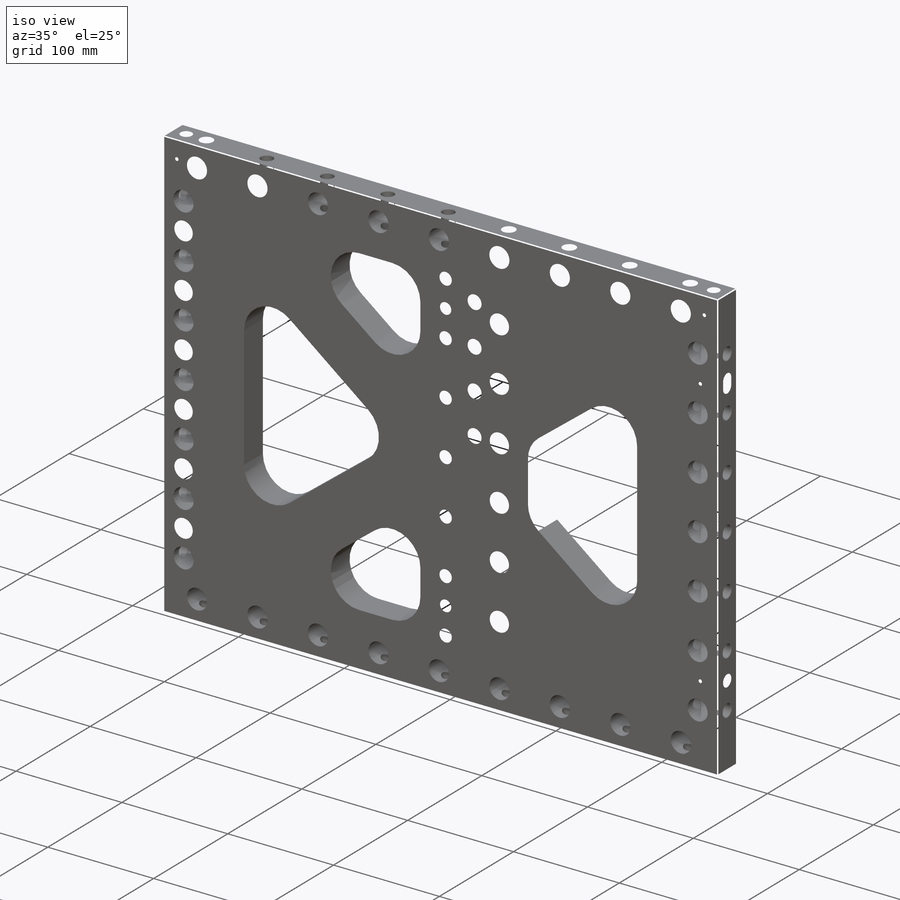
[diagram: iso view]
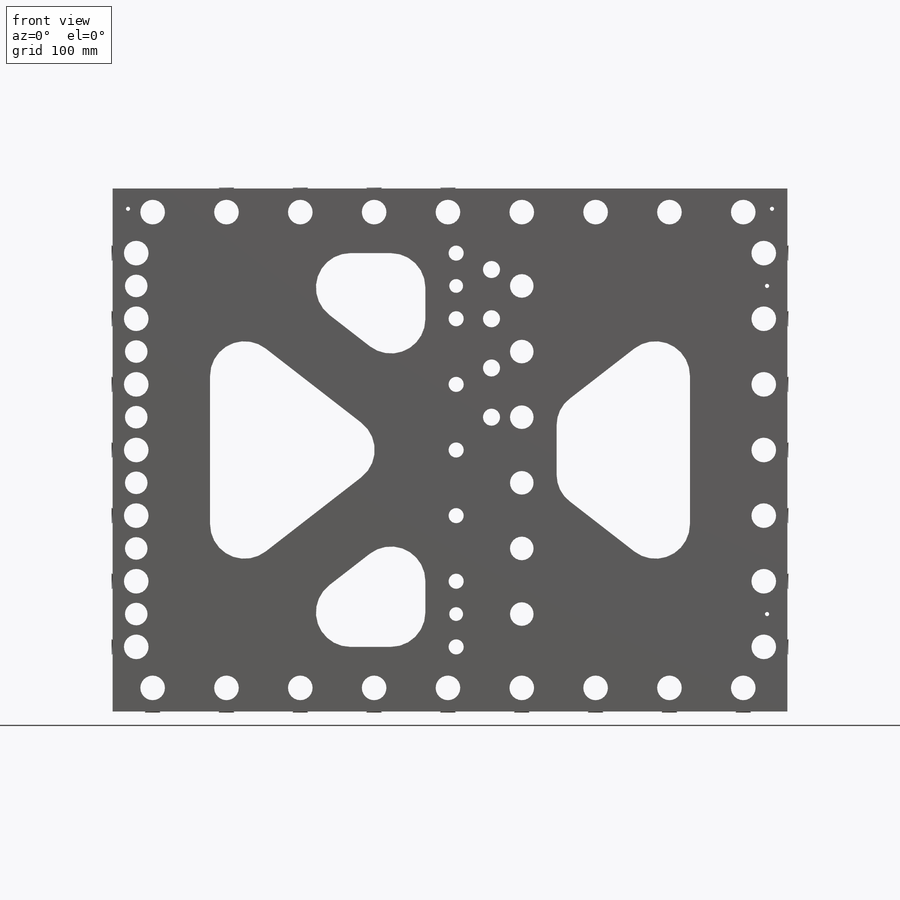
[diagram: front view]
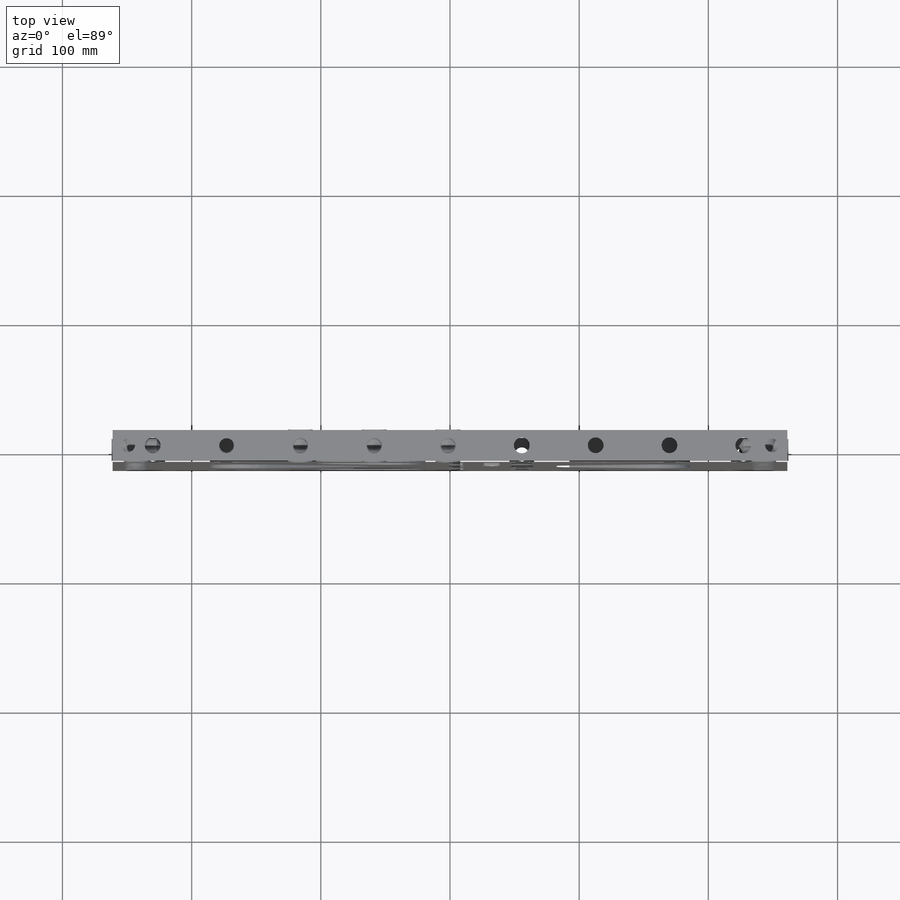
[diagram: top view]
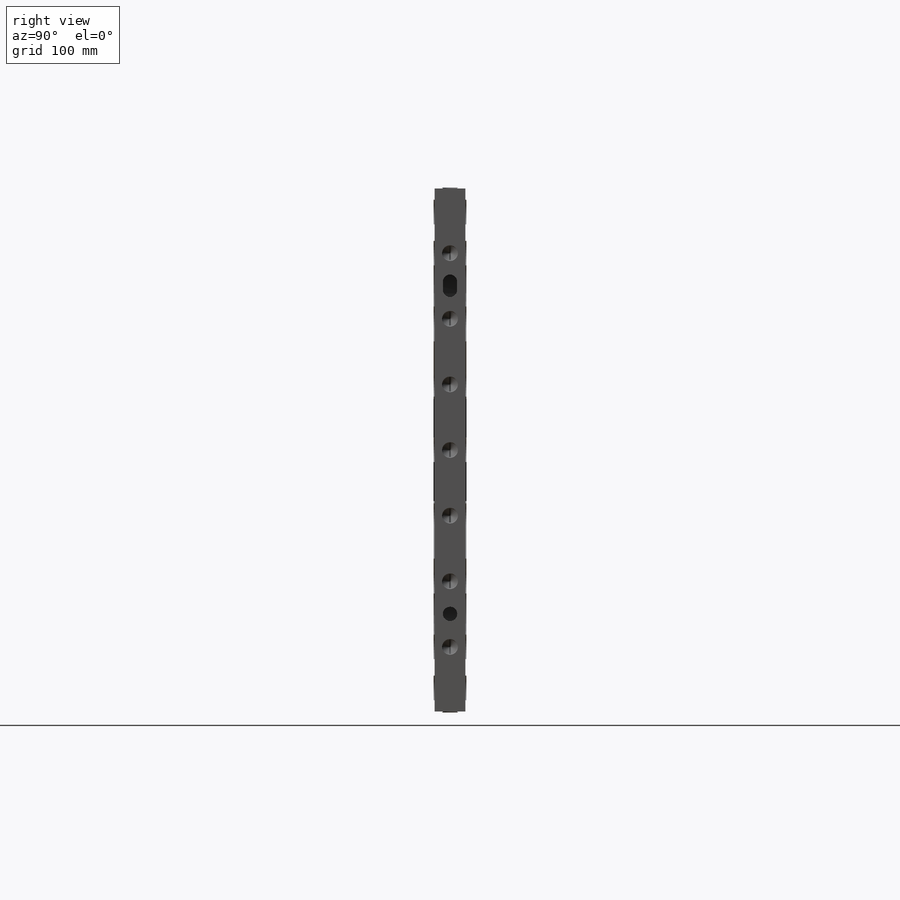
[diagram: right view]
SOLIDWORKS PART (.sldprt)
format: sldprt  version: not decoded by parser v0  size: 1,367,040 bytes
history: native  units: mm
features: sketch x29, hole x12, pattern_linear x5, extrude x3, fillet x3, cut_extrude x2, mirror x2, chamfer x2, material x1 (+14 scaffold rows collapsed)
feature tree (73):
  scaffold x14  (default folders/planes/origin — collapsed)
  material  "6061-T6 Al"
  sketch  "Sketch2"  dims[D1=523.875mm D2=406.4mm]
  extrude  "Extrude1"  Depth=25.4mm
  sketch  "Sketch8"  dims[D1=50.8mm D2=76.2mm D3=50.8mm]
  cut_extrude  "Triangles -- Cut-Extrude2"  [1 undecoded]
  fillet  "Triangles -- Fillet1"  Radius=26.67mm
  sketch  "Sketch14"  dims[D1=38.1mm]
  extrude  "Extrude3"  [1 undecoded]
  fillet  "Fillet1"  Radius=26.67mm
  hole  "3/4 (0.75) Diameter Hole1"  Diameter=19.05mm Depth=25.4mm
  sketch  "Sketch4"  dims[D1=19.05mm]
  sketch  "Sketch3"  dims[hole-wizard template sketch: 61 standard entries collapsed; hole parameters above]
  hole  "7/16 (0.4375) Diameter Hole1"  Diameter=11.1125mm Depth=34.925mm
  sketch  "Sketch6"
  sketch  "Sketch5"  dims[hole-wizard template sketch: 46 standard entries collapsed; hole parameters above]
  pattern_linear  "LPattern3"  Count1=4 Count2=4 Spacing1=50.8mm Spacing2=50.8mm
  mirror  "Mirror1"
  hole  "3/4 (0.75) Diameter Hole2"  Diameter=19.05mm Depth=25.4mm
  sketch  "Sketch11"  dims[D1=19.05mm D2=1.5875mm]
  sketch  "Sketch10"  dims[hole-wizard template sketch: 61 standard entries collapsed; hole parameters above]
  hole  "7/16 (0.4375) Diameter Hole2"  Diameter=11.1125mm Depth=34.925mm
  sketch  "Sketch13"
  sketch  "Sketch12"  dims[hole-wizard template sketch: 46 standard entries collapsed; hole parameters above]
  pattern_linear  "LPattern4"  Count1=5 Count2=5 Spacing1=57.15mm Spacing2=57.15mm
  mirror  "Mirror2"
  hole  "CBORE for 3/8 Socket Head Cap Screw4"  Diameter=10.31748mm Depth=25.4mm
  sketch  "Sketch16"  dims[D1=4.7625mm]
  sketch  "Sketch15"  dims[hole-wizard template sketch: 43 standard entries collapsed; hole parameters kept: c12.C'Bore Dia.=17.4625mm c12.C'Bore Depth=10.668mm c12.Far C'Sink Dia.=11.684mm c12.D6=~2.963249mm c12.Far C'Sink Angle=82.0deg]
  pattern_linear  "LPattern5"  Count1=4 Count2=4 Spacing1=50.8mm Spacing2=50.8mm
  hole  "CBORE for 3/8 Socket Head Cap Screw1"  Diameter=10.31748mm Depth=25.4mm
  sketch  "Sketch18"  dims[D1=76.2mm]
  sketch  "Sketch17"  dims[hole-wizard template sketch: 43 standard entries collapsed; hole parameters kept: c12.C'Bore Dia.=17.4625mm c12.C'Bore Depth=12.7mm c12.Far C'Sink Dia.=11.684mm c12.D6=~2.963249mm c12.Far C'Sink Angle=82.0deg]
  pattern_linear  "LPattern7"  Count1=6 Count2=1 Spacing1=50.8mm Spacing2=50mm
  sketch  "Sketch19"  dims[c1.D1=50.8mm c1.D2=50.4444mm c2.D1=63.5mm]
  extrude  "Extrude4"  [1 undecoded]
  fillet  "Fillet2"  Radius=25.4mm
  hole  "3/8-16 Tapped Heli-Coil Hole1"  Diameter=10.0838mm Depth=25.4mm
  sketch  "Sketch23"  dims[c1.D1=38.1mm c1.D2=~35.303883mm c1.D3=63.5mm c2.D2=~229.808532mm]
  sketch  "Sketch22"  dims[hole-wizard template sketch: 42 standard entries collapsed; hole parameters kept: c12.Thru Tap Drill Depth=25.4mm c12.Thread Major Dia.=~11.68908mm c12.Thread Depth=22.86mm c12.Near C'Sink Dia.=13.208mm c12.D6=~4.399409mm c12.Near C'Sink Angle=120.0deg c12.Far C'Sink Dia.=13.208mm c12.D8=~2.963249mm c12.Far C'Sink Angle=120.0deg]
  hole  "CBORE for 3/8 Socket Head Cap Screw3"  Diameter=11.1125mm Depth=25.4mm
  sketch  "Sketch25"  dims[c1.D1=50.8mm c1.D2=55.5625mm c1.D3=76.2mm c2.D1=55.5625mm c2.D2=76.2mm]
  sketch  "Sketch24"  dims[hole-wizard template sketch: 41 standard entries collapsed; hole parameters kept: c12.Thru Hole Dia.=11.1125mm c12.Thru Hole Depth=25.4mm c12.C'Bore Dia.=~18.25625mm c12.C'Bore Depth=12.7mm c12.Far C'Sink Dia.=12.7mm c12.D6=~2.963249mm c12.Far C'Sink Angle=82.0deg]
  pattern_linear  "LPattern6"  Count1=6 Count2=1 Spacing1=50.8mm Spacing2=50mm
  hole  "3/8 (0.376) Pin Locate1"  Diameter=9.5504mm Depth=19.05mm
  sketch  "Sketch27"
  sketch  "Sketch26"  dims[hole-wizard template sketch: 46 standard entries collapsed; hole parameters above]
  sketch  "Sketch28"  dims[D1=6.35mm D2=2.54mm D3=4.7752mm]
  cut_extrude  "Slot Locate1"  Depth=19.05mm
  chamfer  "Chamfer1"  Distance=0.762mm Angle=45deg
  hole  "3/8 (0.375) Pin + Lead-In Hole1"  Diameter=9.525mm Depth=19.05mm
  sketch  "Sketch30"  dims[D1=12.7mm D2=12.7mm]
  sketch  "Sketch29"  dims[hole-wizard template sketch: 35 standard entries collapsed; hole parameters above]
  hole  "1/8 (0.125) Diameter Hole1"  Diameter=3.175mm Depth=9.652mm
  sketch  "Sketch32"  dims[D1=2.54mm]
  sketch  "Sketch31"  dims[hole-wizard template sketch: 47 standard entries collapsed; hole parameters kept: c15.Hole Depth=9.652mm c15.D3=~14.816244mm c15.Drill Angle=118.0deg]
  hole  "3/8 (0.375) Pin + Lead-In Hole2"  Diameter=9.525mm Depth=25.4mm
  sketch  "Sketch34"  dims[D1=254.0mm]
  sketch  "Sketch33"  dims[hole-wizard template sketch: 42 standard entries collapsed; hole parameters kept: c12.Thru Hole Depth=25.4mm c12.C'Bore Dia.=9.5758mm c12.C'Bore Depth=3.175mm c12.Near C'Sink Dia.=10.668mm c12.D6=~4.399409mm c12.Near C'Sink Angle=82.0deg]
  chamfer  "Chamfer2"  Distance=0.762mm Angle=45deg
decode coverage: 50 of 58 modeling features carry decoded parameters
note: ~ marks probable driven/reference dimensions
note: 3 parameter values undecoded
summary: Diameter pulled from absorbed wizard sketch | no parameter record found for 3 features
note: suppression state not decoded; provenance and decode notes live in map.json
